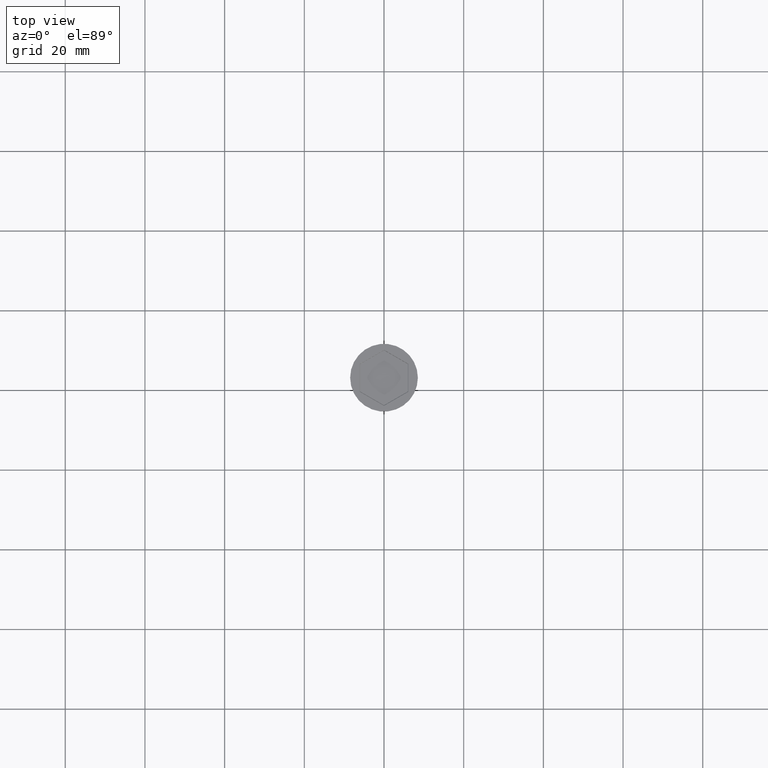
[diagram: clean part render]
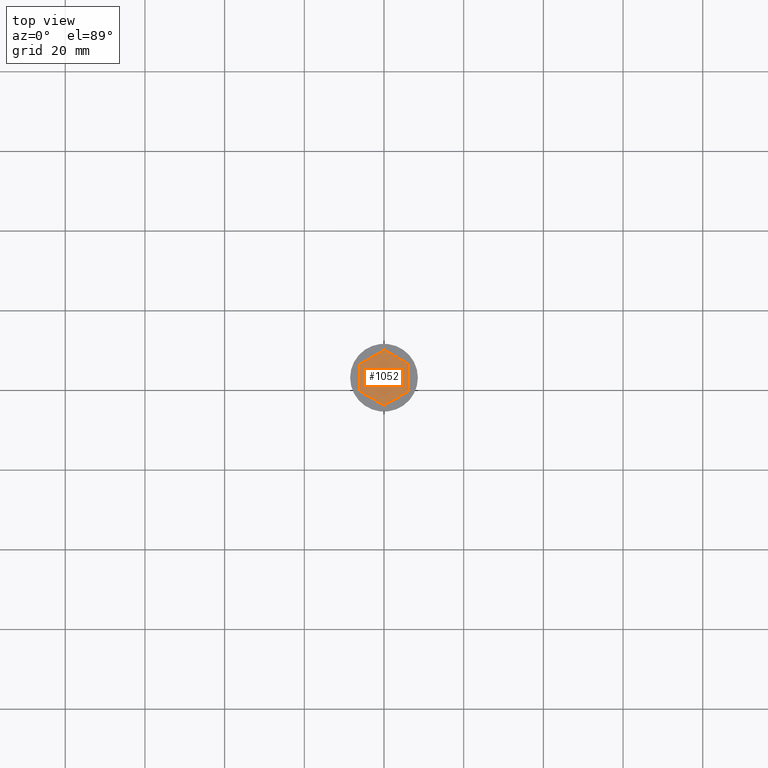
[diagram: same view with one face highlighted and labeled with its STEP entity id]
A machine part, top view. The second image highlights one B-rep face of the part: STEP entity #1052.
In plain terms, the highlighted planar face has unit normal (-0, 0, 1).
Its self-contained STEP definition (entity closure, byte-faithful):
#29 = EDGE_LOOP ( 'NONE', ( #1589, #338, #115, #1061, #413, #441 ) ) ;
#31 = VECTOR ( 'NONE', #925, 1000.000000000000000 ) ;
#68 = VERTEX_POINT ( 'NONE', #191 ) ;
#97 = CARTESIAN_POINT ( 'NONE',  ( -6.000000000000000000, -3.464101615137754830, -2.000000000000000000 ) ) ;
#106 = LINE ( 'NONE', #204, #286 ) ;
#115 = ORIENTED_EDGE ( 'NONE', *, *, #1380, .T. ) ;
#120 = CARTESIAN_POINT ( 'NONE',  ( -6.000000000000000000, 3.464101615137752166, -2.000000000000000000 ) ) ;
#191 = CARTESIAN_POINT ( 'NONE',  ( 6.000000000000000000, -3.464101615137756607, -2.000000000000000000 ) ) ;
#204 = CARTESIAN_POINT ( 'NONE',  ( 2.999999999999998668, 5.196152422706632024, -2.000000000000000000 ) ) ;
#212 = VERTEX_POINT ( 'NONE', #97 ) ;
#220 = DIRECTION ( 'NONE',  ( -0.000000000000000000, 0.000000000000000000, 1.000000000000000000 ) ) ;
#243 = VERTEX_POINT ( 'NONE', #1591 ) ;
#244 = CARTESIAN_POINT ( 'NONE',  ( -3.000000000000000888, -5.196152422706632024, -2.000000000000000000 ) ) ;
#245 = VERTEX_POINT ( 'NONE', #120 ) ;
#286 = VECTOR ( 'NONE', #692, 1000.000000000000114 ) ;
#314 = EDGE_CURVE ( 'NONE', #1242, #68, #893, .T. ) ;
#338 = ORIENTED_EDGE ( 'NONE', *, *, #1390, .T. ) ;
#347 = FACE_OUTER_BOUND ( 'NONE', #29, .T. ) ;
#413 = ORIENTED_EDGE ( 'NONE', *, *, #314, .T. ) ;
#441 = ORIENTED_EDGE ( 'NONE', *, *, #1437, .T. ) ;
#442 = DIRECTION ( 'NONE',  ( 1.000000000000000000, 0.000000000000000000, 0.000000000000000000 ) ) ;
#464 = DIRECTION ( 'NONE',  ( 0.000000000000000000, 1.000000000000000000, -0.000000000000000000 ) ) ;
#467 = CARTESIAN_POINT ( 'NONE',  ( 0.000000000000000000, 0.000000000000000000, -2.000000000000000000 ) ) ;
#481 = DIRECTION ( 'NONE',  ( 0.8660254037844385966, -0.5000000000000001110, 0.000000000000000000 ) ) ;
#581 = LINE ( 'NONE', #1568, #31 ) ;
#582 = EDGE_CURVE ( 'NONE', #1427, #243, #106, .T. ) ;
#692 = DIRECTION ( 'NONE',  ( -0.8660254037844387076, 0.4999999999999998890, 0.000000000000000000 ) ) ;
#741 = VECTOR ( 'NONE', #1527, 1000.000000000000000 ) ;
#893 = LINE ( 'NONE', #1122, #741 ) ;
#925 = DIRECTION ( 'NONE',  ( 1.251928832280966188E-16, -1.000000000000000000, 0.000000000000000000 ) ) ;
#936 = LINE ( 'NONE', #1202, #962 ) ;
#953 = PLANE ( 'NONE',  #1372 ) ;
#962 = VECTOR ( 'NONE', #1553, 1000.000000000000000 ) ;
#1037 = VECTOR ( 'NONE', #481, 1000.000000000000000 ) ;
#1052 = ADVANCED_FACE ( 'NONE', ( #347 ), #953, .T. ) ;
#1061 = ORIENTED_EDGE ( 'NONE', *, *, #1161, .T. ) ;
#1079 = CARTESIAN_POINT ( 'NONE',  ( 6.000000000000000000, 0.000000000000000000, -2.000000000000000000 ) ) ;
#1122 = CARTESIAN_POINT ( 'NONE',  ( 3.000000000000001776, -5.196152422706633800, -2.000000000000000000 ) ) ;
#1161 = EDGE_CURVE ( 'NONE', #212, #1242, #1594, .T. ) ;
#1173 = VECTOR ( 'NONE', #464, 1000.000000000000000 ) ;
#1202 = CARTESIAN_POINT ( 'NONE',  ( -3.000000000000000000, 5.196152422706630247, -2.000000000000000000 ) ) ;
#1242 = VERTEX_POINT ( 'NONE', #1531 ) ;
#1316 = LINE ( 'NONE', #1079, #1173 ) ;
#1372 = AXIS2_PLACEMENT_3D ( 'NONE', #467, #220, #442 ) ;
#1380 = EDGE_CURVE ( 'NONE', #245, #212, #581, .T. ) ;
#1390 = EDGE_CURVE ( 'NONE', #243, #245, #936, .T. ) ;
#1427 = VERTEX_POINT ( 'NONE', #1445 ) ;
#1437 = EDGE_CURVE ( 'NONE', #68, #1427, #1316, .T. ) ;
#1445 = CARTESIAN_POINT ( 'NONE',  ( 6.000000000000000000, 3.464101615137754830, -2.000000000000000000 ) ) ;
#1527 = DIRECTION ( 'NONE',  ( 0.8660254037844385966, 0.5000000000000001110, 0.000000000000000000 ) ) ;
#1531 = CARTESIAN_POINT ( 'NONE',  ( 1.734723475976807094E-15, -6.928203230275511437, -2.000000000000000000 ) ) ;
#1553 = DIRECTION ( 'NONE',  ( -0.8660254037844385966, -0.5000000000000001110, 0.000000000000000000 ) ) ;
#1568 = CARTESIAN_POINT ( 'NONE',  ( -6.000000000000000000, -7.511572993685799101E-16, -2.000000000000000000 ) ) ;
#1589 = ORIENTED_EDGE ( 'NONE', *, *, #582, .T. ) ;
#1591 = CARTESIAN_POINT ( 'NONE',  ( 0.000000000000000000, 6.928203230275507885, -2.000000000000000000 ) ) ;
#1594 = LINE ( 'NONE', #244, #1037 ) ;